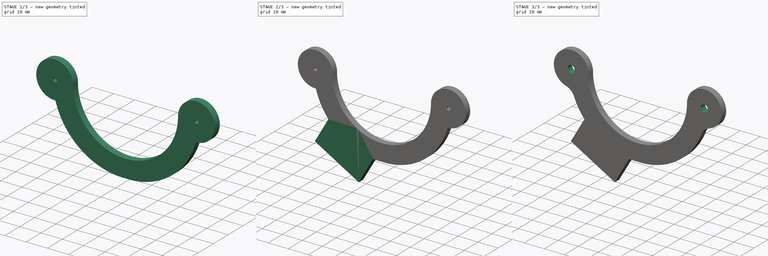
[diagram: build sequence overview — one tinted view per stage of 3, left to right]
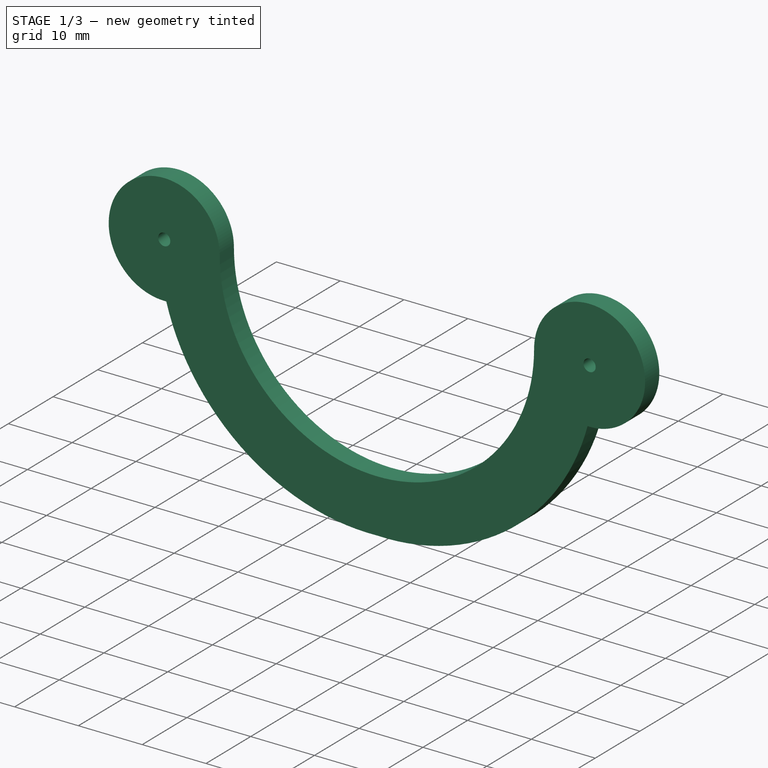
[diagram: stage 1 of 3 — iso view after this stage's code; geometry added in this stage tinted green]
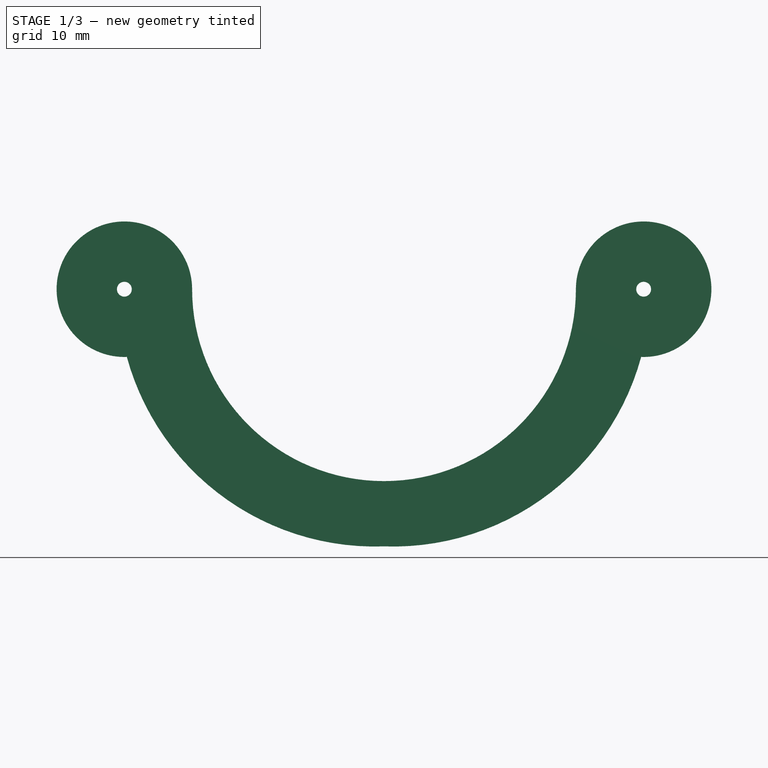
[diagram: stage 1 of 3 — front view after this stage's code; geometry added in this stage tinted green]
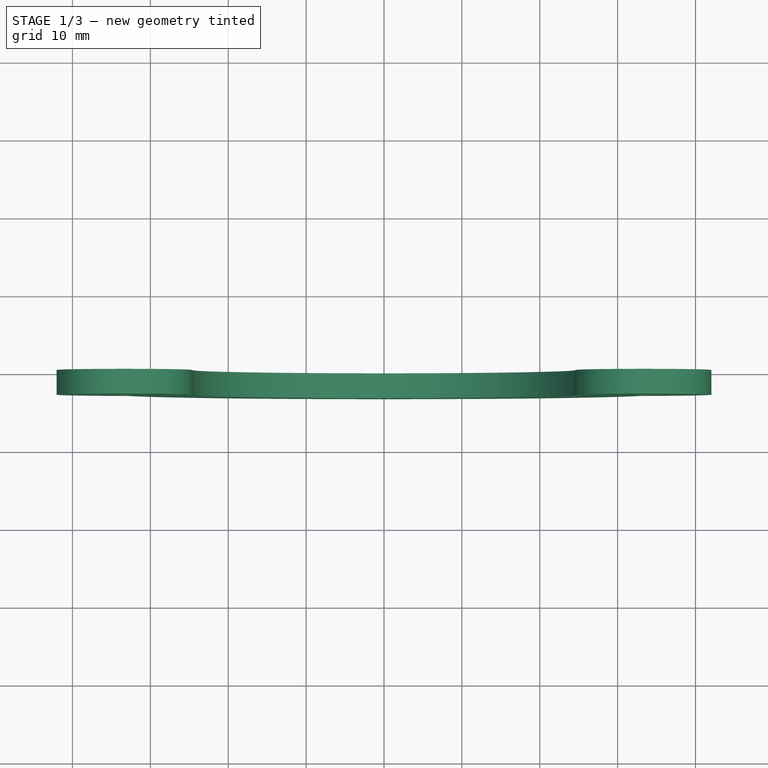
[diagram: stage 1 of 3 — top view after this stage's code; geometry added in this stage tinted green]
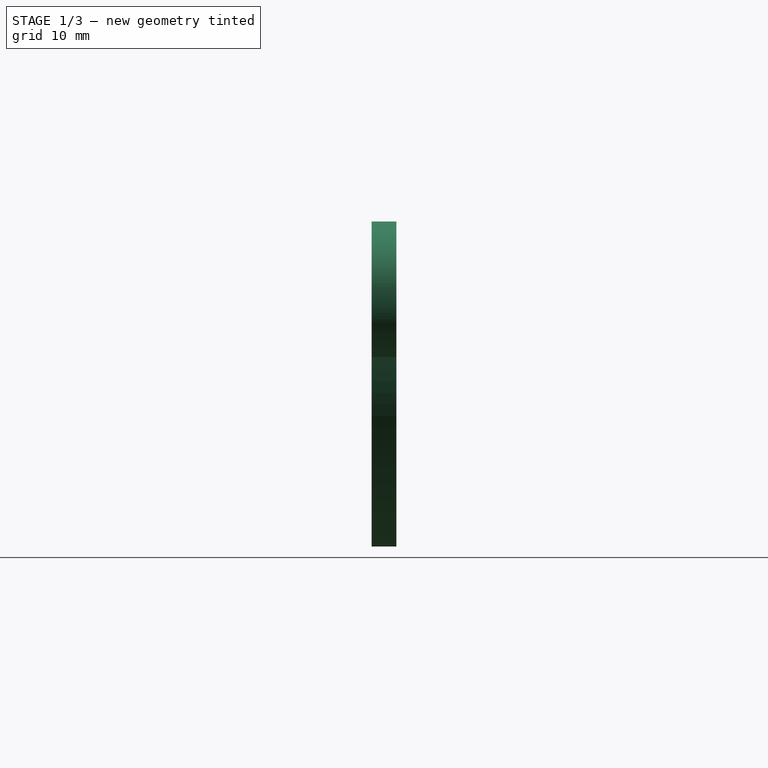
[diagram: stage 1 of 3 — right view after this stage's code; geometry added in this stage tinted green]
FCSTD DOCUMENT  (FreeCAD 2023.131R26244 +5365 (Git))
Label: dodge licence plate light mount v1
License: All rights reserved
LicenseURL: http://en.wikipedia.org/wiki/All_rights_reserved
objects: Sketcher::SketchObject×2, PartDesign::Pad×2, PartDesign::Mirrored×1, PartDesign::Hole×1, PartDesign::Fillet×1, PartDesign::Body×1, Part::Part2DObjectPython×1
note: 21 computed .brp shape members not serialized (recipe doc carries the construction recipe); baked Part::Feature solids carry a one-line shape summary decoded from their .brp

FEATURE [Sketcher::SketchObject] Sketch
  ArcFitTolerance = 1e-06
  AttachmentSupport = -> [XY_Plane]
  ExternalBSplineMaxDegree = 5
  ExternalBSplineTolerance = 0.0001
  FixShape = 1
  FullyConstrained = true
  InternalTolerance = 1e-06
  InvalidShape = false
  MakeInternals = false
  MapMode = 3
  Placement = pos=(0,0,0) rot=(1,0,0;1.5708rad)
  Support = -> [XY_Plane]
  TreeRank = 13
  ValidateShape = false
  sketch-geometry (5):
    g0: ArcOfCircle CenterX=0 CenterY=0 CenterZ=0 NormalX=0 NormalY=0 NormalZ=1 AngleXU=0 Radius=24.638 StartAngle=4.71239 EndAngle=6.28319
    g1: ArcOfCircle CenterX=33.3375 CenterY=-1.1e-15 CenterZ=0 NormalX=0 NormalY=0 NormalZ=1 AngleXU=0 Radius=8.6995 StartAngle=4.67588 EndAngle=9.42478
    g2: ArcOfCircle CenterX=1.14447 CenterY=0 CenterZ=0 NormalX=0 NormalY=0 NormalZ=1 AngleXU=0 Radius=33.0398 StartAngle=4.67774 EndAngle=6.01692
    g3: LineSegment StartX=0 StartY=-33.02 StartZ=0 EndX=0 EndY=-24.638 EndZ=0
    g4: Circle CenterX=33.3375 CenterY=-1.1e-15 CenterZ=0 NormalX=0 NormalY=0 NormalZ=1 AngleXU=0 Radius=0.9525
  constraints (15):
    c: Coincident(g0,g-1)
    c: PointOnObject(g2,g-2)
    c: PointOnObject(g1,g-1)
    c: Coincident(g1,g2)
    c: Coincident(g3,g2)
    c: Vertical(g3)
    c: Tangent(g0,g1) = 1.5708
    c: Coincident(g0,g3)
    c: Diameter(g0) = 49.276
    c: Distance(g1,g0) = 33.3375
    c: PointOnObject(g2,g-1)
    c: Distance(g2,g0) = 33.02
    c: DistanceX(g-2,g1) = 33.02
    c: Coincident(g4,g1)
    c: Diameter(g4) = 1.905
FEATURE [PartDesign::Pad] Pad
  AddSubType = 0
  AlongSketchNormal = false
  AutoTaperInnerAngle = true
  CheckUpToFaceLimits = true
  ClaimChildren = false
  Direction = (0,-1,2e-16)
  Fit = 0
  FitJoin = 0
  FixShape = 1
  InnerFit = 0
  InnerFitJoin = 0
  InvalidShape = false
  Length = 3.175
  Length2 = 100
  Linearize = true
  NewSolid = false
  Profile = -> Sketch
  Refine = true
  Suppress = false
  TaperInnerAngle = 0
  TaperInnerAngleRev = 0
  TreeRank = 14
  Type = 0
  ValidateShape = false
  _ProfileBasedVersion = 1
FEATURE [PartDesign::Mirrored] Mirrored
  AddSubType = 0
  BaseFeature = -> Pad
  CopyShape = false
  FixShape = 1
  InvalidShape = false
  MirrorPlane = -> Sketch [V_Axis]
  NewSolid = false
  OriginalSubs = -> [Pad]
  Originals = -> [Pad]
  ParallelTransform = true
  Refine = true
  SubTransform = true
  Suppress = false
  TreeRank = 15
  ValidateShape = false
  _Version = 3
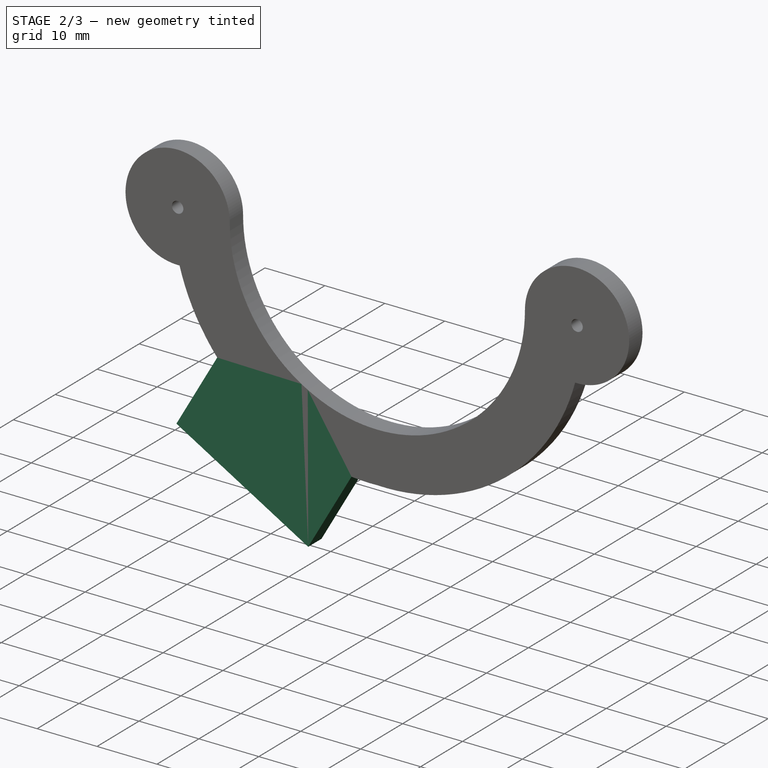
[diagram: stage 2 of 3 — iso view after this stage's code; geometry added in this stage tinted green]
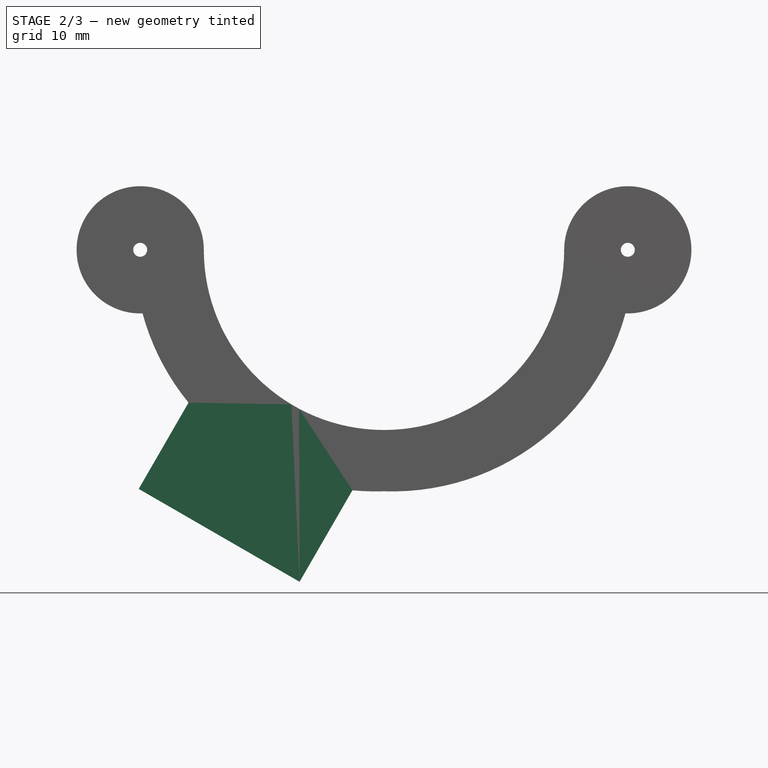
[diagram: stage 2 of 3 — front view after this stage's code; geometry added in this stage tinted green]
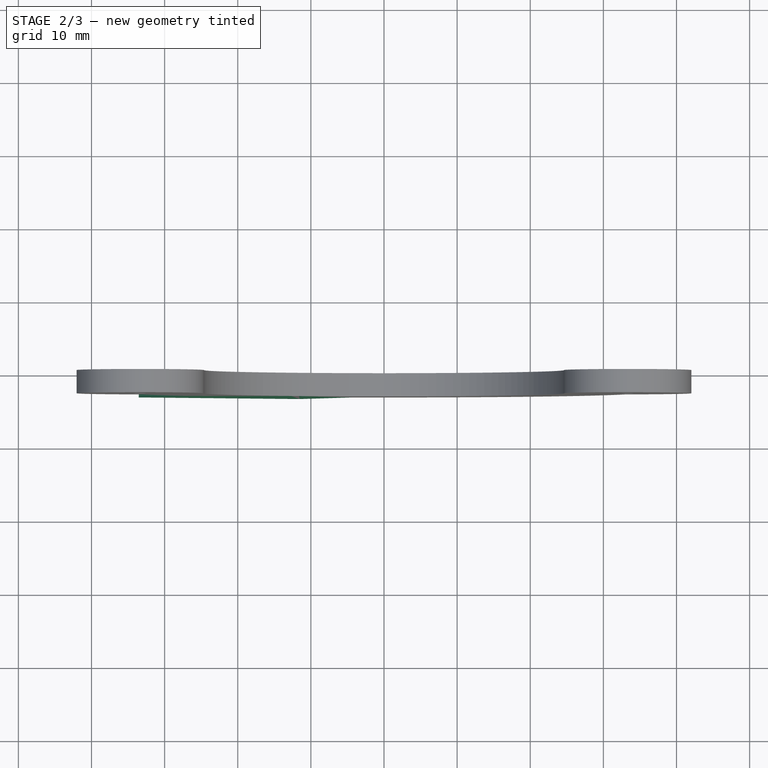
[diagram: stage 2 of 3 — top view after this stage's code; geometry added in this stage tinted green]
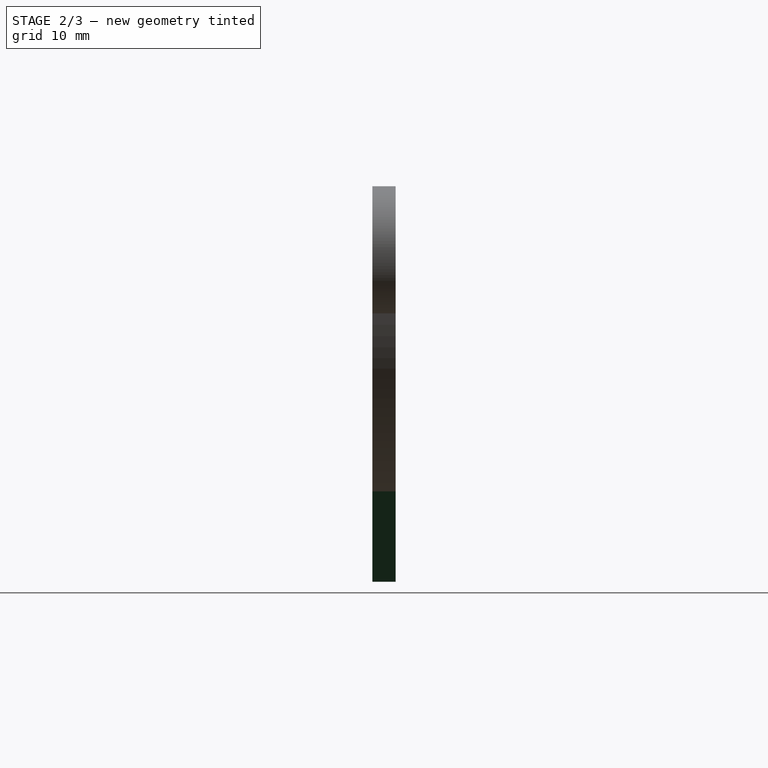
[diagram: stage 2 of 3 — right view after this stage's code; geometry added in this stage tinted green]
FEATURE [Sketcher::SketchObject] Sketch001
  ArcFitTolerance = 1e-06
  AttachmentSupport = -> [Sketch]
  ExternalBSplineMaxDegree = 5
  ExternalBSplineTolerance = 0.0001
  FixShape = 1
  FullyConstrained = false
  InternalTolerance = 1e-06
  InvalidShape = false
  MakeInternals = false
  MapMode = 5
  Placement = pos=(0,0,0) rot=(-1,0,0;1.5708rad)
  Support = -> [Sketch]
  TreeRank = 16
  ValidateShape = false
  sketch-geometry (5):
    g0: LineSegment StartX=-3.28898 StartY=31.0967 StartZ=0 EndX=-25.286 EndY=18.3967 EndZ=0
    g1: LineSegment StartX=-25.286 StartY=18.3967 StartZ=0 EndX=-33.541 EndY=32.6948 EndZ=0
    g2: LineSegment StartX=-33.541 StartY=32.6948 StartZ=0 EndX=-11.544 EndY=45.3948 EndZ=0
    g3: LineSegment StartX=-11.544 StartY=45.3948 StartZ=0 EndX=-3.28898 EndY=31.0967 EndZ=0
    g4: LineSegment [constr] StartX=0 StartY=0 StartZ=0 EndX=-120.8 EndY=209.231 EndZ=0
  constraints (13):
    c: Coincident(g1,g0)
    c: Coincident(g2,g1)
    c: Coincident(g3,g2)
    c: Coincident(g3,g0)
    c: Coincident(g4,g-1)
    c: Symmetric(g0,g0,g4)
    c: Perpendicular(g2,g1)
    c: Perpendicular(g3,g2)
    c: Perpendicular(g0,g3)
    c: Distance(g0) = 25.4
    c: Distance(g1) = 16.51
    c: Angle(g-2,g4) = 0.523599
    c: Distance(g4,g0) = 28.575
FEATURE [PartDesign::Pad] Pad001
  AddSubType = 0
  AlongSketchNormal = false
  AutoTaperInnerAngle = true
  BaseFeature = -> Mirrored
  CheckUpToFaceLimits = true
  ClaimChildren = false
  Direction = (0,1,2e-16)
  Fit = 0
  FitJoin = 0
  FixShape = 1
  InnerFit = 0
  InnerFitJoin = 0
  InvalidShape = false
  Length = 3.175
  Length2 = 100
  Linearize = true
  NewSolid = false
  Profile = -> Sketch001
  Refine = true
  Reversed = true
  Suppress = false
  TaperInnerAngle = 0
  TaperInnerAngleRev = 0
  TreeRank = 17
  Type = 0
  ValidateShape = false
  _ProfileBasedVersion = 1
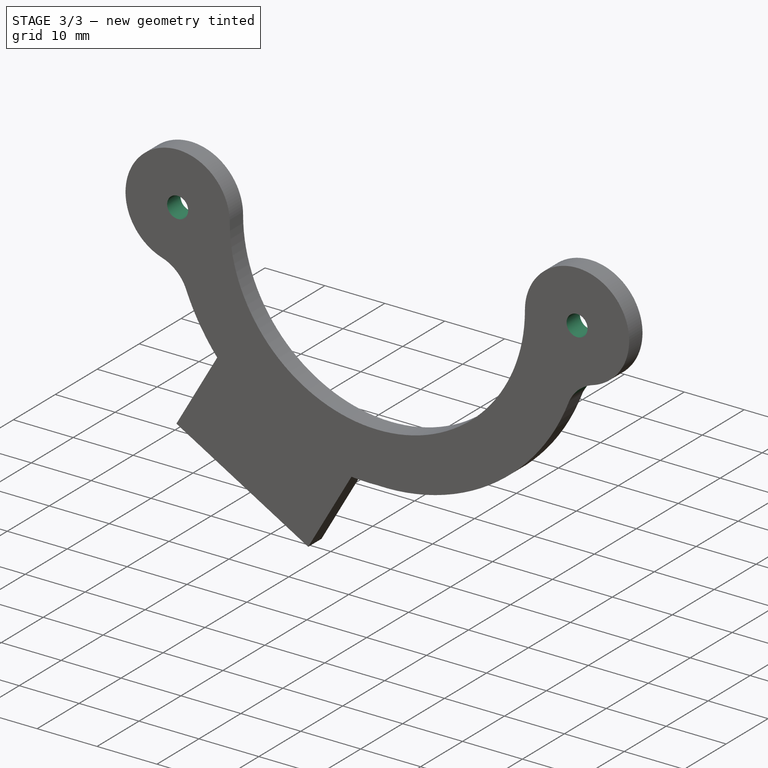
[diagram: stage 3 of 3 — iso view after this stage's code; geometry added in this stage tinted green]
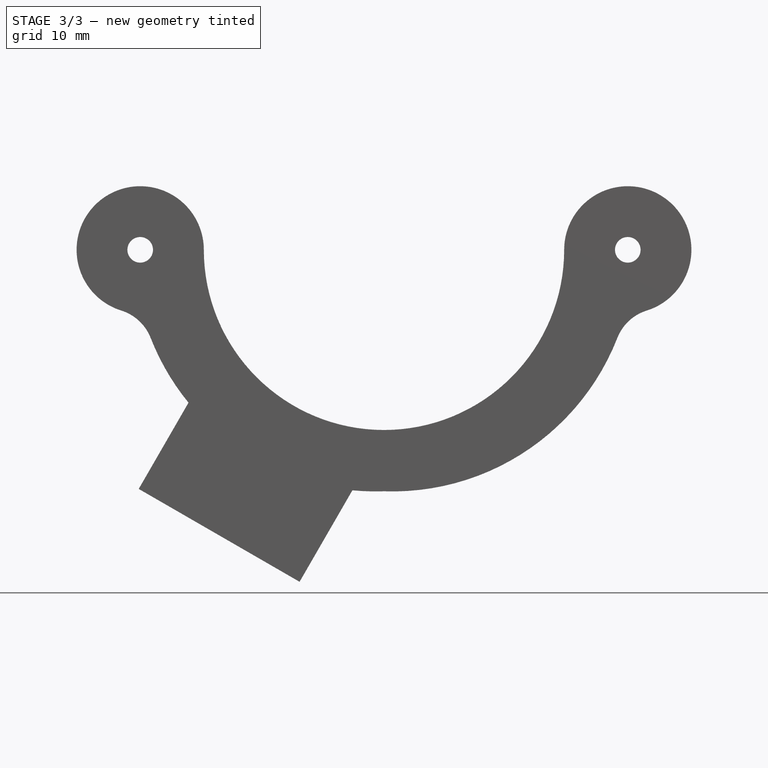
[diagram: stage 3 of 3 — front view after this stage's code; geometry added in this stage tinted green]
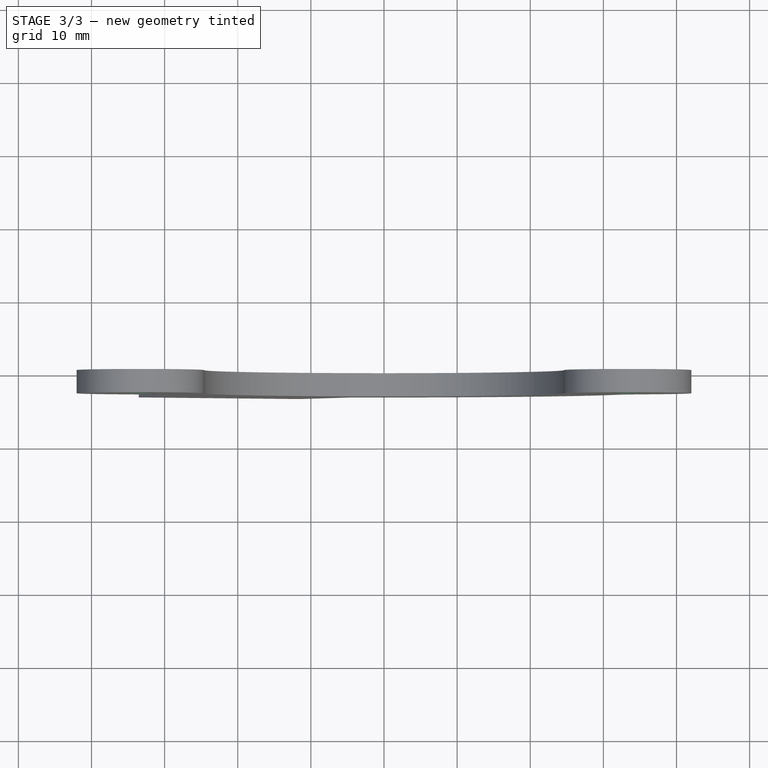
[diagram: stage 3 of 3 — top view after this stage's code; geometry added in this stage tinted green]
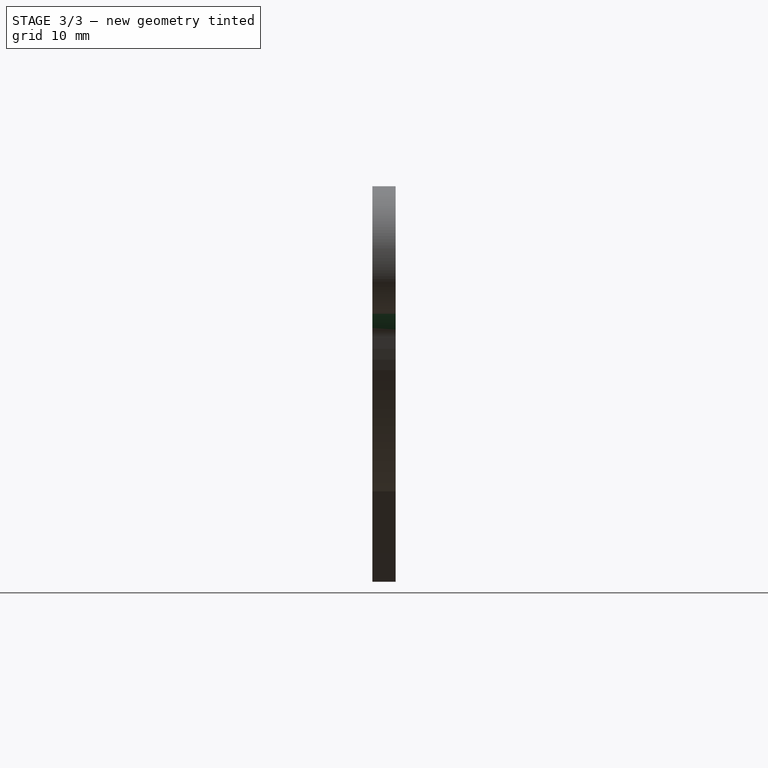
[diagram: stage 3 of 3 — right view after this stage's code; geometry added in this stage tinted green]
FEATURE [PartDesign::Hole] Hole
  AddSubType = 1
  BaseFeature = -> Pad001
  ClaimChildren = false
  CustomThreadClearance = 0
  Depth = 25
  DepthType = 0
  Diameter = 3.5
  DrillForDepth = false
  DrillPoint = 1
  DrillPointAngle = 118
  Fit = 0
  FitJoin = 0
  FixShape = 1
  HoleCutCountersinkAngle = 90
  HoleCutCustomValues = false
  HoleCutDepth = 0
  HoleCutDiameter = 0
  HoleCutType = 0
  InnerFit = 0
  InnerFitJoin = 0
  InvalidShape = false
  Linearize = true
  ModelThread = false
  NewSolid = false
  Profile = -> Pad001 [Edge31,Edge30]
  Suppress = false
  Tapered = false
  TaperedAngle = 90
  ThreadClass = 0
  ThreadDepth = 25
  ThreadDepthType = 0
  ThreadDirection = 0
  ThreadFit = 0
  ThreadSize = 7
  ThreadType = 4
  Threaded = true
  TreeRank = 18
  UseCustomThreadClearance = false
  ValidateShape = false
  _ProfileBasedVersion = 1
FEATURE [PartDesign::Fillet] Fillet
  AddSubType = 0
  Base = -> Hole [Edge30,Edge1]
  BaseFeature = -> Hole
  FixShape = 1
  InvalidShape = false
  NewSolid = false
  Radius = 6.35
  SupportTransform = false
  Suppress = false
  TreeRank = 20
  ValidateShape = false
  _Siblings = -> [Hole,Pad001,Mirrored,Pad]
FEATURE [PartDesign::Body] Body
  AutoGroupSolids = true
  ClaimAllChildren = false
  ExportMode = 0
  FixShape = 1
  Group = -> [Sketch,Sketch001,Pad,Mirrored,Pad001,Hole,Fillet]
  InvalidShape = false
  Origin = -> Origin
  SingleSolid = true
  Tip = -> Fillet
  TreeRank = 12
  ValidateShape = false
  _ExportChildren = -> [Fillet]
  _GroupVersion = 1
FEATURE [Part::Part2DObjectPython] Shape2DView  # Draft 2D object (typed FeaturePython)
  AutoUpdate = true
  Base = -> Fillet
  Clip = false
  FaceNumbers = [1]
  FixShape = 1
  FuseArch = false
  HiddenLines = false
  InPlace = true
  InvalidShape = false
  OnlySolids = false
  Projection = (0,1,0)
  ProjectionMode = 0
  SegmentLength = 0.05
  Tessellation = false
  TreeRank = 21
  ValidateShape = false
  VisibleOnly = false
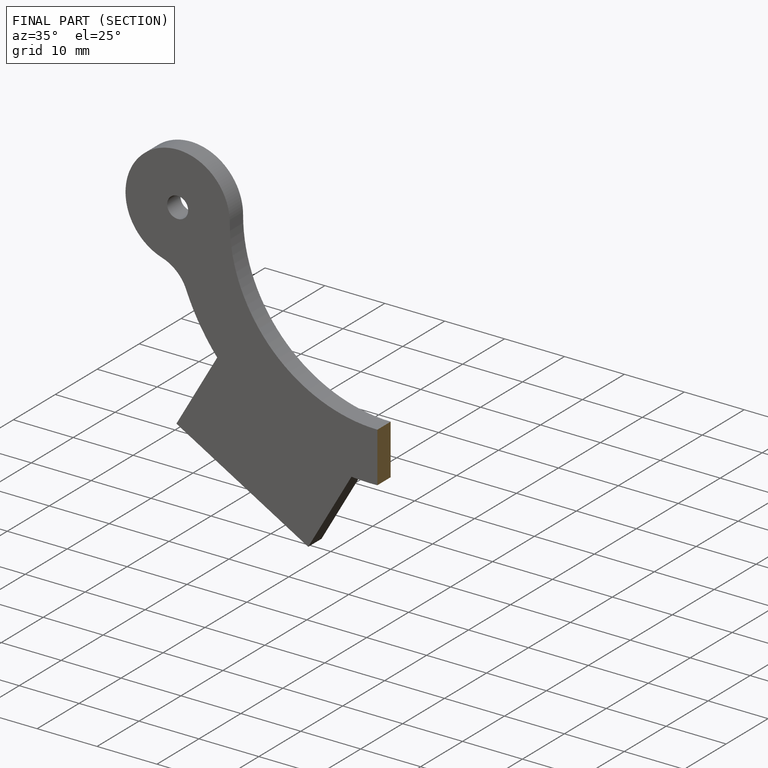
[diagram: finished part — half-section view (interior)]
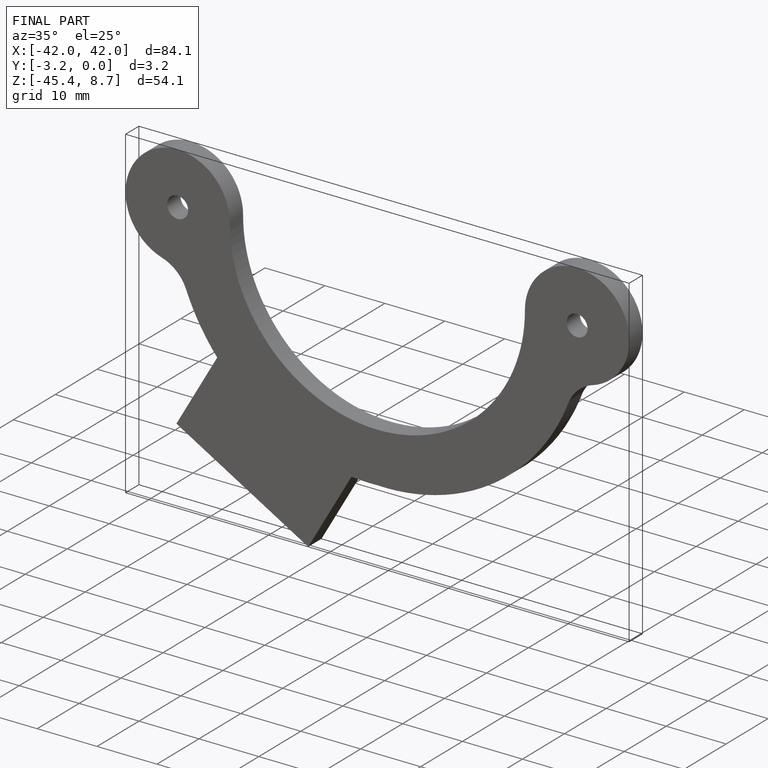
[diagram: finished part — iso view with bounding-box wireframe]
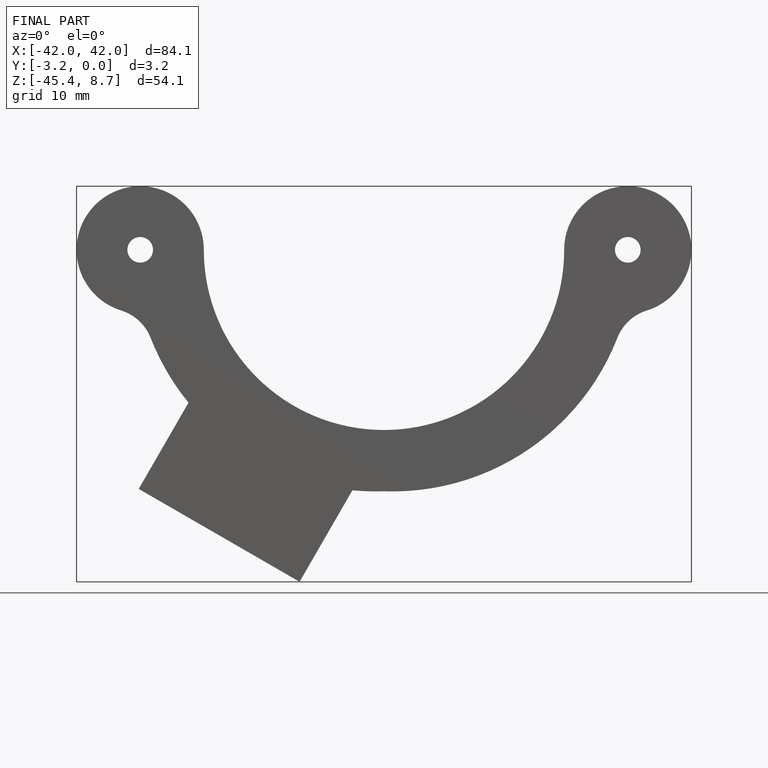
[diagram: finished part — front view with bounding-box wireframe]
